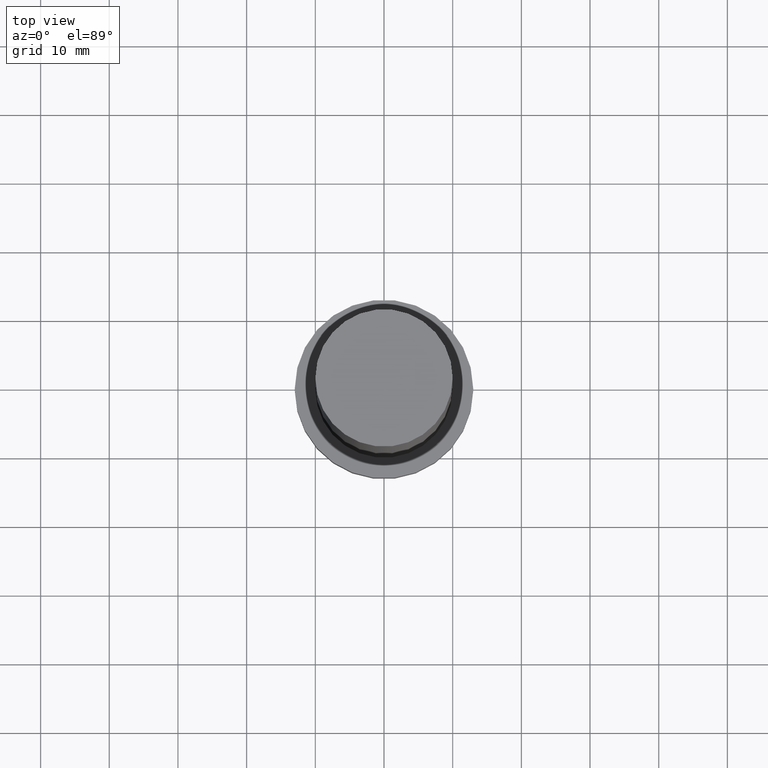
[diagram: clean part render]
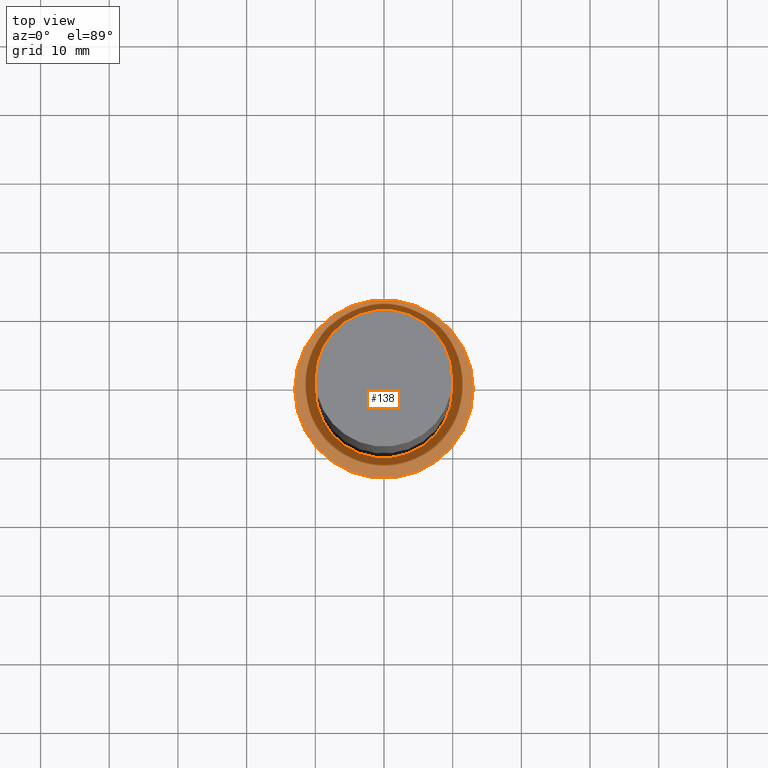
[diagram: same view with one face highlighted and labeled with its STEP entity id]
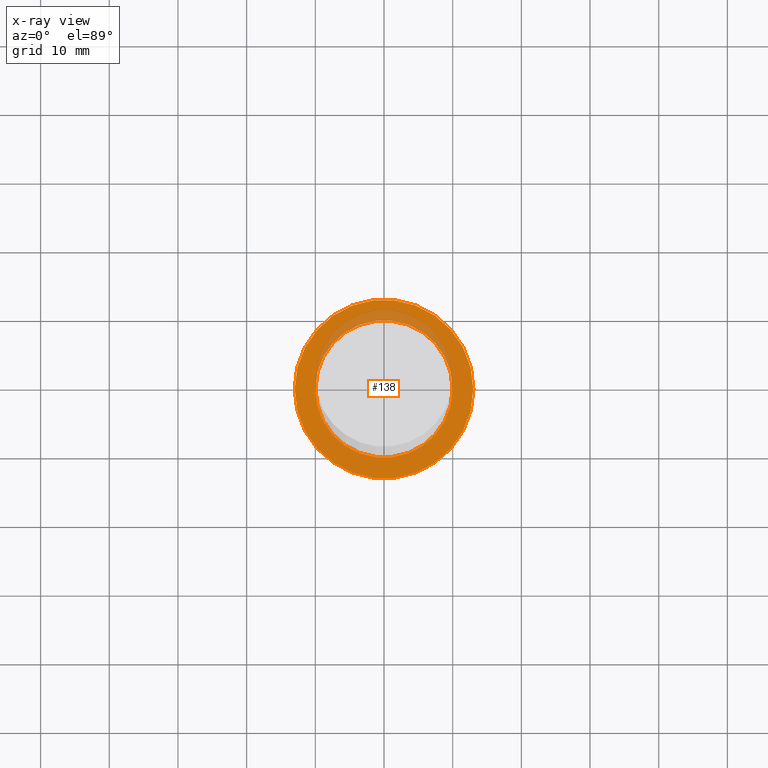
[diagram: x-ray of the same camera — body ghosted, the highlighted face saturated]
A machine part, top view. The second image highlights one B-rep face of the part: STEP entity #138.
The next image is the same camera in x-ray: the body ghosted, the highlighted face saturated — about 15% of this face is hidden behind the body in this view.
In plain terms, the highlighted planar face has unit normal (0, 0, 1).
Its self-contained STEP definition (entity closure, byte-faithful):
#9 = DIRECTION ( 'NONE',  ( 1.000000000000000000, 0.000000000000000000, 0.000000000000000000 ) ) ;
#18 = EDGE_CURVE ( 'NONE', #179, #55, #141, .T. ) ;
#20 = DIRECTION ( 'NONE',  ( 1.000000000000000000, 0.000000000000000000, 0.000000000000000000 ) ) ;
#21 = CIRCLE ( 'NONE', #123, 10.00000000000000000 ) ;
#27 = CARTESIAN_POINT ( 'NONE',  ( 0.000000000000000000, 0.000000000000000000, 8.000000000000000000 ) ) ;
#29 = CARTESIAN_POINT ( 'NONE',  ( 10.00000000000000000, 1.224646799147353256E-15, 8.000000000000000000 ) ) ;
#36 = ORIENTED_EDGE ( 'NONE', *, *, #39, .F. ) ;
#39 = EDGE_CURVE ( 'NONE', #77, #228, #21, .T. ) ;
#47 = AXIS2_PLACEMENT_3D ( 'NONE', #183, #249, #153 ) ;
#50 = CARTESIAN_POINT ( 'NONE',  ( 0.000000000000000000, 0.000000000000000000, 8.000000000000000000 ) ) ;
#55 = VERTEX_POINT ( 'NONE', #121 ) ;
#59 = AXIS2_PLACEMENT_3D ( 'NONE', #27, #182, #9 ) ;
#72 = DIRECTION ( 'NONE',  ( 1.000000000000000000, 0.000000000000000000, -0.000000000000000000 ) ) ;
#74 = CIRCLE ( 'NONE', #59, 10.00000000000000000 ) ;
#77 = VERTEX_POINT ( 'NONE', #251 ) ;
#92 = PLANE ( 'NONE',  #131 ) ;
#93 = DIRECTION ( 'NONE',  ( 0.000000000000000000, 0.000000000000000000, 1.000000000000000000 ) ) ;
#95 = DIRECTION ( 'NONE',  ( 1.000000000000000000, 0.000000000000000000, 0.000000000000000000 ) ) ;
#116 = CARTESIAN_POINT ( 'NONE',  ( 0.000000000000000000, 0.000000000000000000, 8.000000000000000000 ) ) ;
#117 = ORIENTED_EDGE ( 'NONE', *, *, #128, .T. ) ;
#121 = CARTESIAN_POINT ( 'NONE',  ( 13.00000000000000178, 1.592040838891559293E-15, 8.000000000000000000 ) ) ;
#123 = AXIS2_PLACEMENT_3D ( 'NONE', #116, #93, #95 ) ;
#128 = EDGE_CURVE ( 'NONE', #55, #179, #143, .T. ) ;
#131 = AXIS2_PLACEMENT_3D ( 'NONE', #50, #250, #72 ) ;
#134 = CARTESIAN_POINT ( 'NONE',  ( -13.00000000000000178, 0.000000000000000000, 8.000000000000000000 ) ) ;
#135 = FACE_BOUND ( 'NONE', #243, .T. ) ;
#138 = ADVANCED_FACE ( 'NONE', ( #135, #151 ), #92, .T. ) ;
#141 = CIRCLE ( 'NONE', #209, 13.00000000000000178 ) ;
#143 = CIRCLE ( 'NONE', #47, 13.00000000000000178 ) ;
#147 = ORIENTED_EDGE ( 'NONE', *, *, #18, .T. ) ;
#151 = FACE_OUTER_BOUND ( 'NONE', #185, .T. ) ;
#153 = DIRECTION ( 'NONE',  ( 1.000000000000000000, 0.000000000000000000, 0.000000000000000000 ) ) ;
#159 = DIRECTION ( 'NONE',  ( 0.000000000000000000, 0.000000000000000000, 1.000000000000000000 ) ) ;
#175 = CARTESIAN_POINT ( 'NONE',  ( 0.000000000000000000, 0.000000000000000000, 8.000000000000000000 ) ) ;
#179 = VERTEX_POINT ( 'NONE', #134 ) ;
#182 = DIRECTION ( 'NONE',  ( 0.000000000000000000, 0.000000000000000000, 1.000000000000000000 ) ) ;
#183 = CARTESIAN_POINT ( 'NONE',  ( 0.000000000000000000, 0.000000000000000000, 8.000000000000000000 ) ) ;
#185 = EDGE_LOOP ( 'NONE', ( #147, #117 ) ) ;
#209 = AXIS2_PLACEMENT_3D ( 'NONE', #175, #159, #20 ) ;
#228 = VERTEX_POINT ( 'NONE', #29 ) ;
#236 = ORIENTED_EDGE ( 'NONE', *, *, #252, .F. ) ;
#243 = EDGE_LOOP ( 'NONE', ( #36, #236 ) ) ;
#249 = DIRECTION ( 'NONE',  ( 0.000000000000000000, 0.000000000000000000, 1.000000000000000000 ) ) ;
#250 = DIRECTION ( 'NONE',  ( 0.000000000000000000, 0.000000000000000000, 1.000000000000000000 ) ) ;
#251 = CARTESIAN_POINT ( 'NONE',  ( -10.00000000000000000, 0.000000000000000000, 8.000000000000000000 ) ) ;
#252 = EDGE_CURVE ( 'NONE', #228, #77, #74, .T. ) ;